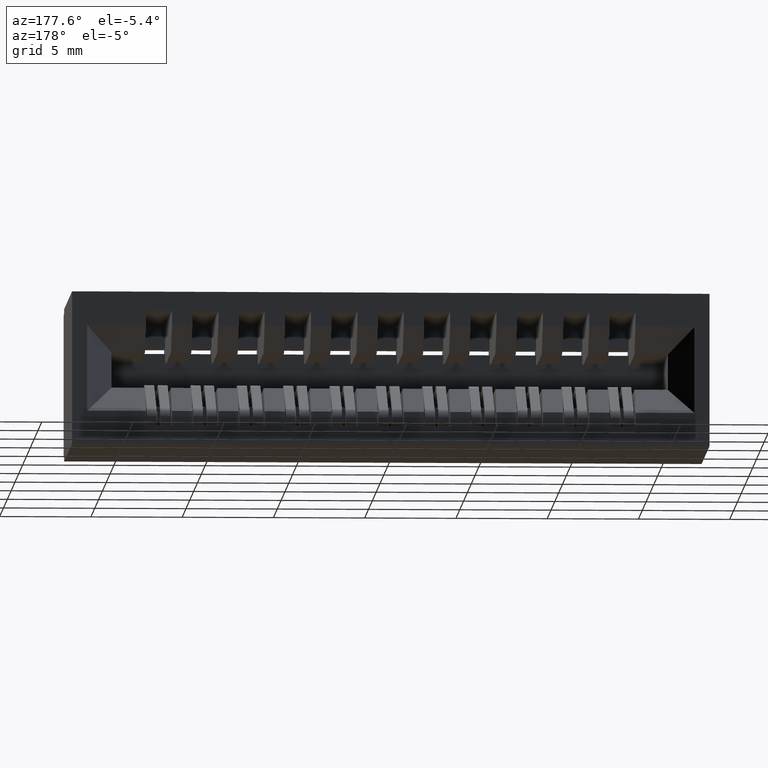
[diagram: clean part render]
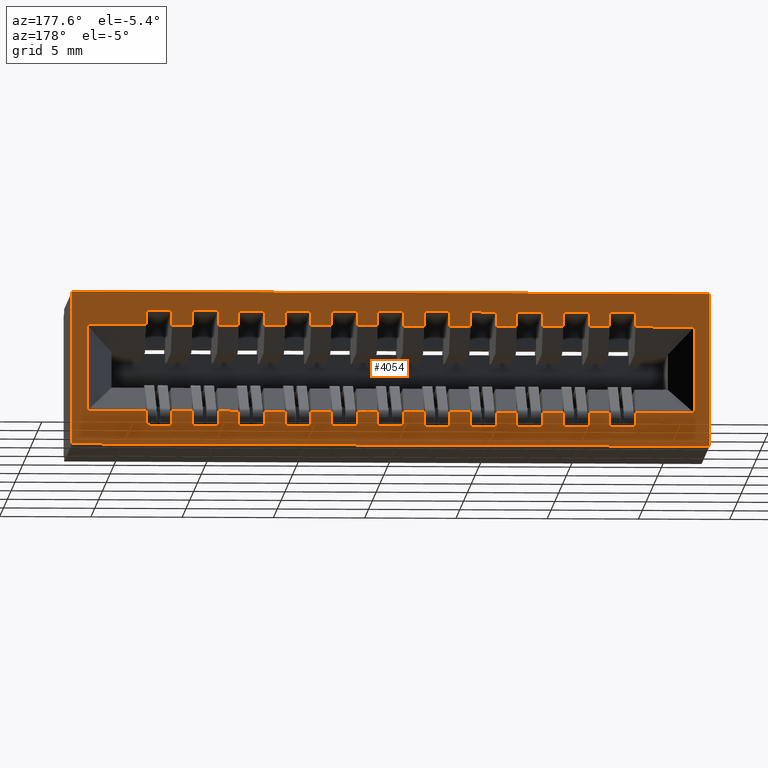
[diagram: same view with one face highlighted and labeled with its STEP entity id]
A machine part, auxiliary view. The second image highlights one B-rep face of the part: STEP entity #4054.
In plain terms, the highlighted planar face has unit normal (0, -1, 0).
Its self-contained STEP definition (entity closure, byte-faithful):
#6 = ORIENTED_EDGE ( 'NONE', *, *, #5112, .F. ) ;
#34 = EDGE_CURVE ( 'NONE', #6419, #14256, #8711, .T. ) ;
#76 = CARTESIAN_POINT ( 'NONE',  ( 0.5594999999999986700, 0.4370000000000000600, -0.2030000000000002100 ) ) ;
#79 = EDGE_CURVE ( 'NONE', #7814, #16576, #8117, .T. ) ;
#127 = ORIENTED_EDGE ( 'NONE', *, *, #5943, .T. ) ;
#149 = ORIENTED_EDGE ( 'NONE', *, *, #303, .T. ) ;
#205 = DIRECTION ( 'NONE',  ( -0.0000000000000000000, -0.0000000000000000000, 1.000000000000000000 ) ) ;
#217 = LINE ( 'NONE', #13107, #16185 ) ;
#218 = CARTESIAN_POINT ( 'NONE',  ( 1.215499999999998700, 0.4370000000000000600, -0.1269999999999999700 ) ) ;
#231 = VECTOR ( 'NONE', #6425, 39.37007874015748100 ) ;
#252 = VECTOR ( 'NONE', #7914, 39.37007874015748100 ) ;
#288 = DIRECTION ( 'NONE',  ( -0.0000000000000000000, -0.0000000000000000000, 1.000000000000000000 ) ) ;
#293 = LINE ( 'NONE', #2968, #252 ) ;
#303 = EDGE_CURVE ( 'NONE', #4162, #318, #7029, .T. ) ;
#308 = LINE ( 'NONE', #2942, #231 ) ;
#318 = VERTEX_POINT ( 'NONE', #7477 ) ;
#327 = LINE ( 'NONE', #2261, #364 ) ;
#345 = DIRECTION ( 'NONE',  ( 1.000000000000000000, -0.0000000000000000000, -0.0000000000000000000 ) ) ;
#353 = LINE ( 'NONE', #12611, #883 ) ;
#356 = LINE ( 'NONE', #8865, #3530 ) ;
#364 = VECTOR ( 'NONE', #2049, 39.37007874015748100 ) ;
#403 = ORIENTED_EDGE ( 'NONE', *, *, #6355, .T. ) ;
#404 = CARTESIAN_POINT ( 'NONE',  ( 0.0000000000000000000, 0.4370000000000000000, -0.07200000000000028600 ) ) ;
#431 = CARTESIAN_POINT ( 'NONE',  ( 0.8594999999999986000, 0.4370000000000000600, -0.04099999999999998800 ) ) ;
#434 = EDGE_CURVE ( 'NONE', #12631, #11871, #6954, .T. ) ;
#440 = DIRECTION ( 'NONE',  ( 0.0000000000000000000, 0.0000000000000000000, 1.000000000000000000 ) ) ;
#445 = DIRECTION ( 'NONE',  ( 1.000000000000000000, 0.0000000000000000000, 2.845674993400275400E-017 ) ) ;
#459 = ORIENTED_EDGE ( 'NONE', *, *, #16254, .T. ) ;
#477 = CARTESIAN_POINT ( 'NONE',  ( 0.7154999999999986900, 0.4370000000000000000, -0.07200000000000028600 ) ) ;
#493 = VERTEX_POINT ( 'NONE', #1115 ) ;
#524 = DIRECTION ( 'NONE',  ( 0.0000000000000000000, 0.0000000000000000000, 1.000000000000000000 ) ) ;
#564 = CARTESIAN_POINT ( 'NONE',  ( 0.9594999999999985800, 0.4370000000000000600, -0.04099999999999998800 ) ) ;
#567 = CARTESIAN_POINT ( 'NONE',  ( 1.015499999999998700, 0.4370000000000000600, -0.2579999999999999500 ) ) ;
#580 = VERTEX_POINT ( 'NONE', #15022 ) ;
#585 = VECTOR ( 'NONE', #3250, 39.37007874015748100 ) ;
#611 = CARTESIAN_POINT ( 'NONE',  ( 0.6594999999999986400, 0.4370000000000000600, -0.1269999999999999700 ) ) ;
#621 = VECTOR ( 'NONE', #10592, 39.37007874015748100 ) ;
#623 = CARTESIAN_POINT ( 'NONE',  ( 0.6154999999999987100, 0.4370000000000000600, -0.1269999999999999700 ) ) ;
#630 = LINE ( 'NONE', #5048, #585 ) ;
#661 = VERTEX_POINT ( 'NONE', #9442 ) ;
#663 = CARTESIAN_POINT ( 'NONE',  ( 0.7594999999999985100, 0.4370000000000000600, -0.04099999999999998800 ) ) ;
#681 = ORIENTED_EDGE ( 'NONE', *, *, #1052, .T. ) ;
#682 = CARTESIAN_POINT ( 'NONE',  ( -2.048885995248202200E-018, 0.4370000000000000000, -0.2579999999999999000 ) ) ;
#729 = VERTEX_POINT ( 'NONE', #3710 ) ;
#731 = LINE ( 'NONE', #10163, #621 ) ;
#768 = EDGE_CURVE ( 'NONE', #7814, #6118, #4990, .T. ) ;
#788 = VERTEX_POINT ( 'NONE', #6269 ) ;
#791 = VECTOR ( 'NONE', #11297, 39.37007874015748100 ) ;
#823 = ORIENTED_EDGE ( 'NONE', *, *, #6489, .T. ) ;
#838 = VECTOR ( 'NONE', #13155, 39.37007874015748100 ) ;
#871 = LINE ( 'NONE', #623, #838 ) ;
#880 = CARTESIAN_POINT ( 'NONE',  ( 1.459499999999998900, 0.4370000000000000600, -0.07200000000000021700 ) ) ;
#883 = VECTOR ( 'NONE', #12074, 39.37007874015748100 ) ;
#884 = ORIENTED_EDGE ( 'NONE', *, *, #8053, .F. ) ;
#917 = ORIENTED_EDGE ( 'NONE', *, *, #34, .T. ) ;
#940 = LINE ( 'NONE', #12424, #791 ) ;
#1001 = LINE ( 'NONE', #12814, #1071 ) ;
#1015 = VECTOR ( 'NONE', #16717, 39.37007874015748100 ) ;
#1029 = EDGE_CURVE ( 'NONE', #12631, #7507, #3443, .T. ) ;
#1033 = LINE ( 'NONE', #16535, #1015 ) ;
#1052 = EDGE_CURVE ( 'NONE', #318, #16426, #3301, .T. ) ;
#1068 = EDGE_CURVE ( 'NONE', #13597, #14256, #3170, .T. ) ;
#1071 = VECTOR ( 'NONE', #12459, 39.37007874015748100 ) ;
#1104 = ORIENTED_EDGE ( 'NONE', *, *, #15228, .F. ) ;
#1115 = CARTESIAN_POINT ( 'NONE',  ( 1.315499999999998800, 0.4370000000000000000, -0.07200000000000028600 ) ) ;
#1120 = CARTESIAN_POINT ( 'NONE',  ( 1.159499999999998600, 0.4370000000000000600, -0.04099999999999998800 ) ) ;
#1121 = EDGE_CURVE ( 'NONE', #7507, #9515, #2993, .T. ) ;
#1134 = VECTOR ( 'NONE', #12641, 39.37007874015748100 ) ;
#1165 = VECTOR ( 'NONE', #14563, 39.37007874015748100 ) ;
#1215 = CARTESIAN_POINT ( 'NONE',  ( 0.0000000000000000000, 0.4370000000000000000, -0.07200000000000028600 ) ) ;
#1218 = LINE ( 'NONE', #15084, #1165 ) ;
#1297 = VERTEX_POINT ( 'NONE', #7851 ) ;
#1314 = VERTEX_POINT ( 'NONE', #14656 ) ;
#1350 = LINE ( 'NONE', #12831, #1134 ) ;
#1358 = DIRECTION ( 'NONE',  ( -1.000000000000000000, 0.0000000000000000000, 0.0000000000000000000 ) ) ;
#1367 = ORIENTED_EDGE ( 'NONE', *, *, #5768, .T. ) ;
#1399 = EDGE_CURVE ( 'NONE', #5874, #10832, #2108, .T. ) ;
#1422 = ORIENTED_EDGE ( 'NONE', *, *, #1720, .F. ) ;
#1458 = DIRECTION ( 'NONE',  ( -1.000000000000000000, 0.0000000000000000000, 0.0000000000000000000 ) ) ;
#1499 = ORIENTED_EDGE ( 'NONE', *, *, #1954, .T. ) ;
#1507 = LINE ( 'NONE', #3725, #3238 ) ;
#1514 = ORIENTED_EDGE ( 'NONE', *, *, #12069, .T. ) ;
#1518 = CARTESIAN_POINT ( 'NONE',  ( 0.0000000000000000000, 0.4370000000000000000, -0.07200000000000028600 ) ) ;
#1539 = VECTOR ( 'NONE', #9783, 39.37007874015748100 ) ;
#1575 = CARTESIAN_POINT ( 'NONE',  ( 1.215499999999998700, 0.4370000000000000600, -0.2579999999999999500 ) ) ;
#1597 = EDGE_LOOP ( 'NONE', ( #1670, #1767, #1802, #1997, #2027, #2240, #2411, #2620, #9981, #6813, #10218, #16007, #9597, #4013, #9433, #13714, #13179, #8907, #10651, #16256, #14987, #13896, #15253, #3694, #4885, #10785, #14533, #5997, #7229, #4243, #15947, #10189, #6465, #3574, #3377, #3176, #2890, #5979, #8838, #8459, #6, #127, #403, #823, #884, #2453, #2472, #2762, #3190, #3408, #3848, #3864, #5212, #5723, #5908, #6175, #5975, #7151, #7764, #9917, #9762, #8662, #8046, #16041, #15703, #15919, #15982, #15486, #12856, #16001, #6582, #7295, #12038, #9873, #10170, #10476, #11733, #12294, #12912, #13088, #13129, #13278, #13455, #917, #13699, #13996, #14997, #459, #149, #681, #1514, #1104 ) ) ;
#1599 = LINE ( 'NONE', #9844, #1539 ) ;
#1601 = CARTESIAN_POINT ( 'NONE',  ( 0.8154999999999985600, 0.4370000000000000000, -0.07200000000000028600 ) ) ;
#1621 = ORIENTED_EDGE ( 'NONE', *, *, #1971, .F. ) ;
#1625 = LINE ( 'NONE', #3908, #1832 ) ;
#1648 = VECTOR ( 'NONE', #4616, 39.37007874015748100 ) ;
#1670 = ORIENTED_EDGE ( 'NONE', *, *, #2264, .F. ) ;
#1679 = LINE ( 'NONE', #5326, #1648 ) ;
#1720 = EDGE_CURVE ( 'NONE', #6481, #7919, #1350, .T. ) ;
#1767 = ORIENTED_EDGE ( 'NONE', *, *, #2320, .T. ) ;
#1772 = EDGE_CURVE ( 'NONE', #3873, #3223, #871, .T. ) ;
#1784 = EDGE_CURVE ( 'NONE', #580, #12310, #940, .T. ) ;
#1802 = ORIENTED_EDGE ( 'NONE', *, *, #2555, .T. ) ;
#1832 = VECTOR ( 'NONE', #3861, 39.37007874015748100 ) ;
#1837 = VERTEX_POINT ( 'NONE', #14387 ) ;
#1847 = EDGE_CURVE ( 'NONE', #9515, #7469, #630, .T. ) ;
#1922 = VECTOR ( 'NONE', #7311, 39.37007874015748100 ) ;
#1945 = CARTESIAN_POINT ( 'NONE',  ( 1.459499999999998900, 0.4370000000000000600, -0.1269999999999999700 ) ) ;
#1948 = DIRECTION ( 'NONE',  ( 1.000000000000000000, 0.0000000000000000000, 2.845674993400275400E-017 ) ) ;
#1954 = EDGE_CURVE ( 'NONE', #6481, #9038, #308, .T. ) ;
#1971 = EDGE_CURVE ( 'NONE', #7610, #9038, #293, .T. ) ;
#1982 = CARTESIAN_POINT ( 'NONE',  ( 0.8594999999999986000, 0.4370000000000000600, -0.04099999999999998800 ) ) ;
#1997 = ORIENTED_EDGE ( 'NONE', *, *, #2690, .F. ) ;
#2027 = ORIENTED_EDGE ( 'NONE', *, *, #3206, .F. ) ;
#2048 = CARTESIAN_POINT ( 'NONE',  ( 0.6594999999999986400, 0.4370000000000000600, -0.2890000000000002000 ) ) ;
#2049 = DIRECTION ( 'NONE',  ( 0.0000000000000000000, 0.0000000000000000000, 1.000000000000000000 ) ) ;
#2085 = CARTESIAN_POINT ( 'NONE',  ( 0.0000000000000000000, 0.4370000000000000000, -0.07200000000000028600 ) ) ;
#2108 = LINE ( 'NONE', #10081, #1922 ) ;
#2135 = DIRECTION ( 'NONE',  ( -1.000000000000000000, 0.0000000000000000000, 0.0000000000000000000 ) ) ;
#2193 = CARTESIAN_POINT ( 'NONE',  ( 1.115499999999998600, 0.4370000000000000600, -0.04099999999999998800 ) ) ;
#2212 = VERTEX_POINT ( 'NONE', #13165 ) ;
#2236 = VERTEX_POINT ( 'NONE', #12854 ) ;
#2240 = ORIENTED_EDGE ( 'NONE', *, *, #3261, .T. ) ;
#2261 = CARTESIAN_POINT ( 'NONE',  ( 0.8154999999999985600, 0.4370000000000000600, -0.1269999999999999700 ) ) ;
#2264 = EDGE_CURVE ( 'NONE', #3863, #13552, #16264, .T. ) ;
#2288 = VERTEX_POINT ( 'NONE', #4102 ) ;
#2320 = EDGE_CURVE ( 'NONE', #3863, #3803, #16183, .T. ) ;
#2361 = CARTESIAN_POINT ( 'NONE',  ( 0.0000000000000000000, 0.4370000000000000000, -0.07200000000000028600 ) ) ;
#2366 = EDGE_CURVE ( 'NONE', #9735, #6554, #16170, .T. ) ;
#2400 = VECTOR ( 'NONE', #9519, 39.37007874015748100 ) ;
#2411 = ORIENTED_EDGE ( 'NONE', *, *, #3787, .T. ) ;
#2453 = ORIENTED_EDGE ( 'NONE', *, *, #8900, .T. ) ;
#2472 = ORIENTED_EDGE ( 'NONE', *, *, #8096, .T. ) ;
#2527 = LINE ( 'NONE', #1982, #2400 ) ;
#2552 = EDGE_CURVE ( 'NONE', #13597, #6384, #15872, .T. ) ;
#2555 = EDGE_CURVE ( 'NONE', #3803, #729, #15883, .T. ) ;
#2620 = ORIENTED_EDGE ( 'NONE', *, *, #3821, .F. ) ;
#2630 = DIRECTION ( 'NONE',  ( -0.0000000000000000000, -0.0000000000000000000, 1.000000000000000000 ) ) ;
#2642 = CARTESIAN_POINT ( 'NONE',  ( 1.115499999999998600, 0.4370000000000000600, -0.2579999999999999500 ) ) ;
#2666 = VERTEX_POINT ( 'NONE', #10410 ) ;
#2690 = EDGE_CURVE ( 'NONE', #4260, #729, #15620, .T. ) ;
#2762 = ORIENTED_EDGE ( 'NONE', *, *, #9589, .T. ) ;
#2789 = VECTOR ( 'NONE', #7789, 39.37007874015748100 ) ;
#2826 = EDGE_CURVE ( 'NONE', #4487, #7469, #15394, .T. ) ;
#2847 = DIRECTION ( 'NONE',  ( 0.0000000000000000000, 0.0000000000000000000, 1.000000000000000000 ) ) ;
#2861 = LINE ( 'NONE', #76, #2789 ) ;
#2877 = LINE ( 'NONE', #4025, #3009 ) ;
#2890 = ORIENTED_EDGE ( 'NONE', *, *, #768, .F. ) ;
#2896 = VECTOR ( 'NONE', #12230, 39.37007874015748100 ) ;
#2925 = VECTOR ( 'NONE', #7195, 39.37007874015748100 ) ;
#2942 = CARTESIAN_POINT ( 'NONE',  ( 0.0000000000000000000, 0.4370000000000000000, -0.3300000000000000200 ) ) ;
#2968 = CARTESIAN_POINT ( 'NONE',  ( 0.2999999999999999300, 0.4370000000000000000, -0.3300000000000000200 ) ) ;
#2973 = VERTEX_POINT ( 'NONE', #9999 ) ;
#2982 = LINE ( 'NONE', #1215, #2896 ) ;
#2993 = LINE ( 'NONE', #7343, #2925 ) ;
#3009 = VECTOR ( 'NONE', #15093, 39.37007874015748100 ) ;
#3074 = VECTOR ( 'NONE', #4463, 39.37007874015748100 ) ;
#3106 = VERTEX_POINT ( 'NONE', #13990 ) ;
#3146 = DIRECTION ( 'NONE',  ( 1.000000000000000000, -0.0000000000000000000, -0.0000000000000000000 ) ) ;
#3153 = EDGE_CURVE ( 'NONE', #4487, #6446, #14927, .T. ) ;
#3170 = LINE ( 'NONE', #10649, #3074 ) ;
#3173 = DIRECTION ( 'NONE',  ( 0.0000000000000000000, 0.0000000000000000000, 1.000000000000000000 ) ) ;
#3176 = ORIENTED_EDGE ( 'NONE', *, *, #4981, .F. ) ;
#3190 = ORIENTED_EDGE ( 'NONE', *, *, #10616, .F. ) ;
#3197 = LINE ( 'NONE', #7113, #3459 ) ;
#3206 = EDGE_CURVE ( 'NONE', #12986, #4260, #14837, .T. ) ;
#3223 = VERTEX_POINT ( 'NONE', #9143 ) ;
#3238 = VECTOR ( 'NONE', #3703, 39.37007874015748100 ) ;
#3250 = DIRECTION ( 'NONE',  ( 1.000000000000000000, 0.0000000000000000000, 2.845674993400275400E-017 ) ) ;
#3253 = VECTOR ( 'NONE', #11596, 39.37007874015748100 ) ;
#3261 = EDGE_CURVE ( 'NONE', #12986, #493, #14643, .T. ) ;
#3301 = LINE ( 'NONE', #6678, #3253 ) ;
#3351 = CARTESIAN_POINT ( 'NONE',  ( 0.0000000000000000000, 0.4370000000000000000, -0.3300000000000000200 ) ) ;
#3368 = PLANE ( 'NONE',  #15884 ) ;
#3377 = ORIENTED_EDGE ( 'NONE', *, *, #1772, .T. ) ;
#3394 = VECTOR ( 'NONE', #5964, 39.37007874015748100 ) ;
#3408 = ORIENTED_EDGE ( 'NONE', *, *, #11107, .T. ) ;
#3443 = LINE ( 'NONE', #9797, #3394 ) ;
#3459 = VECTOR ( 'NONE', #15803, 39.37007874015748100 ) ;
#3530 = VECTOR ( 'NONE', #8821, 39.37007874015748100 ) ;
#3574 = ORIENTED_EDGE ( 'NONE', *, *, #13882, .T. ) ;
#3575 = VERTEX_POINT ( 'NONE', #6604 ) ;
#3602 = EDGE_CURVE ( 'NONE', #6446, #10973, #13868, .T. ) ;
#3604 = VERTEX_POINT ( 'NONE', #4237 ) ;
#3607 = VERTEX_POINT ( 'NONE', #8531 ) ;
#3691 = CARTESIAN_POINT ( 'NONE',  ( 0.8154999999999985600, 0.4370000000000000600, -0.2890000000000002000 ) ) ;
#3694 = ORIENTED_EDGE ( 'NONE', *, *, #7143, .F. ) ;
#3703 = DIRECTION ( 'NONE',  ( -0.0000000000000000000, -0.0000000000000000000, 1.000000000000000000 ) ) ;
#3710 = CARTESIAN_POINT ( 'NONE',  ( 1.415499999999998900, 0.4370000000000000600, -0.04099999999999998800 ) ) ;
#3716 = VERTEX_POINT ( 'NONE', #564 ) ;
#3725 = CARTESIAN_POINT ( 'NONE',  ( 0.7154999999999986900, 0.4370000000000000600, -0.2030000000000002100 ) ) ;
#3739 = CARTESIAN_POINT ( 'NONE',  ( 0.9594999999999985800, 0.4370000000000000600, -0.07200000000000021700 ) ) ;
#3765 = CARTESIAN_POINT ( 'NONE',  ( 0.8154999999999985600, 0.4370000000000000600, -0.2579999999999999500 ) ) ;
#3787 = EDGE_CURVE ( 'NONE', #493, #11005, #13562, .T. ) ;
#3800 = DIRECTION ( 'NONE',  ( 0.0000000000000000000, 0.0000000000000000000, 1.000000000000000000 ) ) ;
#3803 = VERTEX_POINT ( 'NONE', #7560 ) ;
#3821 = EDGE_CURVE ( 'NONE', #9093, #11005, #13405, .T. ) ;
#3843 = LINE ( 'NONE', #5388, #3886 ) ;
#3848 = ORIENTED_EDGE ( 'NONE', *, *, #12533, .T. ) ;
#3849 = EDGE_CURVE ( 'NONE', #10973, #2288, #13291, .T. ) ;
#3861 = DIRECTION ( 'NONE',  ( 1.000000000000000000, 0.0000000000000000000, 2.845674993400275400E-017 ) ) ;
#3863 = VERTEX_POINT ( 'NONE', #880 ) ;
#3864 = ORIENTED_EDGE ( 'NONE', *, *, #12820, .T. ) ;
#3873 = VERTEX_POINT ( 'NONE', #5020 ) ;
#3886 = VECTOR ( 'NONE', #5604, 39.37007874015748100 ) ;
#3908 = CARTESIAN_POINT ( 'NONE',  ( -2.048885995248202200E-018, 0.4370000000000000000, -0.2579999999999999000 ) ) ;
#3923 = VERTEX_POINT ( 'NONE', #1120 ) ;
#3937 = VERTEX_POINT ( 'NONE', #1601 ) ;
#3977 = CARTESIAN_POINT ( 'NONE',  ( 0.2999999999999999900, 0.4370000000000000000, 0.0000000000000000000 ) ) ;
#3993 = DIRECTION ( 'NONE',  ( -0.0000000000000000000, -0.0000000000000000000, 1.000000000000000000 ) ) ;
#4013 = ORIENTED_EDGE ( 'NONE', *, *, #4988, .T. ) ;
#4025 = CARTESIAN_POINT ( 'NONE',  ( 0.9154999999999986500, 0.4370000000000000600, -0.1269999999999999700 ) ) ;
#4049 = VERTEX_POINT ( 'NONE', #2048 ) ;
#4054 = ADVANCED_FACE ( 'NONE', ( #12905, #12975 ), #3368, .F. ) ;
#4055 = EDGE_CURVE ( 'NONE', #9032, #9093, #12768, .T. ) ;
#4079 = EDGE_CURVE ( 'NONE', #14266, #11143, #12742, .T. ) ;
#4080 = CARTESIAN_POINT ( 'NONE',  ( 0.5594999999999986700, 0.4370000000000000600, -0.2579999999999999500 ) ) ;
#4086 = EDGE_CURVE ( 'NONE', #9032, #2973, #12714, .T. ) ;
#4102 = CARTESIAN_POINT ( 'NONE',  ( 1.159499999999998600, 0.4370000000000000600, -0.2579999999999999500 ) ) ;
#4136 = EDGE_CURVE ( 'NONE', #2973, #6825, #12506, .T. ) ;
#4162 = VERTEX_POINT ( 'NONE', #9805 ) ;
#4202 = DIRECTION ( 'NONE',  ( -0.0000000000000000000, -0.0000000000000000000, 1.000000000000000000 ) ) ;
#4237 = CARTESIAN_POINT ( 'NONE',  ( 0.4594999999999986900, 0.4370000000000000600, -0.07200000000000021700 ) ) ;
#4243 = ORIENTED_EDGE ( 'NONE', *, *, #9436, .T. ) ;
#4255 = DIRECTION ( 'NONE',  ( 0.0000000000000000000, -1.000000000000000000, 0.0000000000000000000 ) ) ;
#4260 = VERTEX_POINT ( 'NONE', #14199 ) ;
#4261 = VECTOR ( 'NONE', #12072, 39.37007874015748100 ) ;
#4354 = EDGE_CURVE ( 'NONE', #6681, #1297, #11962, .T. ) ;
#4363 = LINE ( 'NONE', #14411, #4261 ) ;
#4382 = CARTESIAN_POINT ( 'NONE',  ( 0.6154999999999987100, 0.4370000000000000600, -0.2890000000000002000 ) ) ;
#4413 = VECTOR ( 'NONE', #8247, 39.37007874015748100 ) ;
#4419 = CARTESIAN_POINT ( 'NONE',  ( 1.259499999999999000, 0.4370000000000000600, -0.2030000000000002100 ) ) ;
#4455 = DIRECTION ( 'NONE',  ( 0.0000000000000000000, -0.0000000000000000000, -1.000000000000000000 ) ) ;
#4457 = EDGE_CURVE ( 'NONE', #3923, #6825, #11680, .T. ) ;
#4463 = DIRECTION ( 'NONE',  ( -0.0000000000000000000, -0.0000000000000000000, 1.000000000000000000 ) ) ;
#4487 = VERTEX_POINT ( 'NONE', #6621 ) ;
#4528 = LINE ( 'NONE', #7228, #4413 ) ;
#4545 = CARTESIAN_POINT ( 'NONE',  ( 0.4594999999999986900, 0.4370000000000000600, -0.2579999999999999500 ) ) ;
#4571 = EDGE_CURVE ( 'NONE', #7555, #2288, #11473, .T. ) ;
#4616 = DIRECTION ( 'NONE',  ( 1.000000000000000000, 0.0000000000000000000, 2.845674993400275400E-017 ) ) ;
#4652 = VERTEX_POINT ( 'NONE', #9839 ) ;
#4721 = VECTOR ( 'NONE', #11127, 39.37007874015748100 ) ;
#4762 = LINE ( 'NONE', #16345, #4721 ) ;
#4841 = VERTEX_POINT ( 'NONE', #4382 ) ;
#4849 = VECTOR ( 'NONE', #14621, 39.37007874015748100 ) ;
#4885 = ORIENTED_EDGE ( 'NONE', *, *, #7538, .F. ) ;
#4909 = CARTESIAN_POINT ( 'NONE',  ( 1.259499999999999000, 0.4370000000000000600, -0.1269999999999999700 ) ) ;
#4910 = LINE ( 'NONE', #16651, #4849 ) ;
#4950 = EDGE_CURVE ( 'NONE', #788, #3923, #10194, .T. ) ;
#4970 = DIRECTION ( 'NONE',  ( -1.000000000000000000, 0.0000000000000000000, 0.0000000000000000000 ) ) ;
#4981 = EDGE_CURVE ( 'NONE', #6118, #3223, #10147, .T. ) ;
#4988 = EDGE_CURVE ( 'NONE', #788, #2236, #10023, .T. ) ;
#4990 = LINE ( 'NONE', #13316, #5009 ) ;
#5009 = VECTOR ( 'NONE', #10459, 39.37007874015748100 ) ;
#5014 = CARTESIAN_POINT ( 'NONE',  ( 1.215499999999998700, 0.4370000000000000600, -0.2030000000000002100 ) ) ;
#5020 = CARTESIAN_POINT ( 'NONE',  ( 0.6154999999999987100, 0.4370000000000000000, -0.07200000000000028600 ) ) ;
#5048 = CARTESIAN_POINT ( 'NONE',  ( -2.048885995248202200E-018, 0.4370000000000000000, -0.2579999999999999000 ) ) ;
#5112 = EDGE_CURVE ( 'NONE', #3604, #14266, #9740, .T. ) ;
#5159 = VECTOR ( 'NONE', #13453, 39.37007874015748100 ) ;
#5174 = VECTOR ( 'NONE', #11314, 39.37007874015748100 ) ;
#5186 = DIRECTION ( 'NONE',  ( 1.000000000000000000, 0.0000000000000000000, 2.845674993400275400E-017 ) ) ;
#5212 = ORIENTED_EDGE ( 'NONE', *, *, #13219, .F. ) ;
#5213 = CARTESIAN_POINT ( 'NONE',  ( -2.048885995248202200E-018, 0.4370000000000000000, -0.2579999999999999000 ) ) ;
#5226 = LINE ( 'NONE', #15197, #5159 ) ;
#5227 = EDGE_CURVE ( 'NONE', #2236, #10540, #9025, .T. ) ;
#5263 = CARTESIAN_POINT ( 'NONE',  ( 0.6594999999999986400, 0.4370000000000000600, -0.07200000000000021700 ) ) ;
#5294 = CARTESIAN_POINT ( 'NONE',  ( 0.8594999999999986000, 0.4370000000000000600, -0.2890000000000002000 ) ) ;
#5326 = CARTESIAN_POINT ( 'NONE',  ( -2.048885995248202200E-018, 0.4370000000000000000, -0.2579999999999999000 ) ) ;
#5370 = LINE ( 'NONE', #11780, #5174 ) ;
#5371 = EDGE_CURVE ( 'NONE', #4652, #10540, #8583, .T. ) ;
#5388 = CARTESIAN_POINT ( 'NONE',  ( 0.6594999999999986400, 0.4370000000000000600, -0.04099999999999998800 ) ) ;
#5413 = VERTEX_POINT ( 'NONE', #10911 ) ;
#5446 = EDGE_CURVE ( 'NONE', #10832, #6419, #8446, .T. ) ;
#5547 = LINE ( 'NONE', #16236, #5552 ) ;
#5552 = VECTOR ( 'NONE', #1458, 39.37007874015748100 ) ;
#5596 = CARTESIAN_POINT ( 'NONE',  ( 0.7154999999999986900, 0.4370000000000000600, -0.2890000000000002000 ) ) ;
#5604 = DIRECTION ( 'NONE',  ( 1.000000000000000000, -0.0000000000000000000, -0.0000000000000000000 ) ) ;
#5723 = ORIENTED_EDGE ( 'NONE', *, *, #13449, .T. ) ;
#5768 = EDGE_CURVE ( 'NONE', #7610, #7919, #7249, .T. ) ;
#5773 = LINE ( 'NONE', #15985, #7235 ) ;
#5778 = EDGE_CURVE ( 'NONE', #7555, #3607, #7408, .T. ) ;
#5841 = VERTEX_POINT ( 'NONE', #3691 ) ;
#5874 = VERTEX_POINT ( 'NONE', #6439 ) ;
#5908 = ORIENTED_EDGE ( 'NONE', *, *, #13801, .T. ) ;
#5943 = EDGE_CURVE ( 'NONE', #3604, #1837, #6727, .T. ) ;
#5944 = CARTESIAN_POINT ( 'NONE',  ( 0.5154999999999987400, 0.4370000000000000600, -0.2890000000000002000 ) ) ;
#5955 = CARTESIAN_POINT ( 'NONE',  ( 0.4594999999999986900, 0.4370000000000000600, -0.04099999999999998800 ) ) ;
#5964 = DIRECTION ( 'NONE',  ( 1.000000000000000000, -0.0000000000000000000, -0.0000000000000000000 ) ) ;
#5968 = EDGE_CURVE ( 'NONE', #12687, #4652, #6675, .T. ) ;
#5975 = ORIENTED_EDGE ( 'NONE', *, *, #14408, .F. ) ;
#5979 = ORIENTED_EDGE ( 'NONE', *, *, #79, .T. ) ;
#5997 = ORIENTED_EDGE ( 'NONE', *, *, #8163, .F. ) ;
#6025 = DIRECTION ( 'NONE',  ( 1.000000000000000000, -0.0000000000000000000, -0.0000000000000000000 ) ) ;
#6050 = EDGE_CURVE ( 'NONE', #3607, #12446, #6475, .T. ) ;
#6090 = CARTESIAN_POINT ( 'NONE',  ( 1.675000000000000000, 0.4370000000000000000, -1.836970198721029400E-017 ) ) ;
#6118 = VERTEX_POINT ( 'NONE', #7612 ) ;
#6138 = DIRECTION ( 'NONE',  ( 0.0000000000000000000, 0.0000000000000000000, 1.000000000000000000 ) ) ;
#6164 = DIRECTION ( 'NONE',  ( 1.000000000000000000, -0.0000000000000000000, -0.0000000000000000000 ) ) ;
#6165 = EDGE_CURVE ( 'NONE', #12687, #2666, #5547, .T. ) ;
#6175 = ORIENTED_EDGE ( 'NONE', *, *, #14064, .T. ) ;
#6241 = VECTOR ( 'NONE', #10690, 39.37007874015748100 ) ;
#6269 = CARTESIAN_POINT ( 'NONE',  ( 1.159499999999998600, 0.4370000000000000600, -0.07200000000000021700 ) ) ;
#6344 = DIRECTION ( 'NONE',  ( 1.000000000000000000, -0.0000000000000000000, -0.0000000000000000000 ) ) ;
#6355 = EDGE_CURVE ( 'NONE', #1837, #15709, #4910, .T. ) ;
#6372 = VERTEX_POINT ( 'NONE', #15453 ) ;
#6384 = VERTEX_POINT ( 'NONE', #13245 ) ;
#6388 = EDGE_CURVE ( 'NONE', #2666, #6372, #4762, .T. ) ;
#6401 = VECTOR ( 'NONE', #205, 39.37007874015748100 ) ;
#6419 = VERTEX_POINT ( 'NONE', #15222 ) ;
#6425 = DIRECTION ( 'NONE',  ( -1.000000000000000000, -0.0000000000000000000, -0.0000000000000000000 ) ) ;
#6435 = EDGE_CURVE ( 'NONE', #3716, #6372, #4528, .T. ) ;
#6439 = CARTESIAN_POINT ( 'NONE',  ( 1.359499999999999000, 0.4370000000000000600, -0.2890000000000002000 ) ) ;
#6446 = VERTEX_POINT ( 'NONE', #9586 ) ;
#6465 = ORIENTED_EDGE ( 'NONE', *, *, #2366, .F. ) ;
#6475 = LINE ( 'NONE', #5014, #6401 ) ;
#6481 = VERTEX_POINT ( 'NONE', #11829 ) ;
#6489 = EDGE_CURVE ( 'NONE', #15709, #9752, #4363, .T. ) ;
#6497 = LINE ( 'NONE', #7590, #6241 ) ;
#6520 = CARTESIAN_POINT ( 'NONE',  ( 1.415499999999998900, 0.4370000000000000600, -0.2030000000000002100 ) ) ;
#6537 = CARTESIAN_POINT ( 'NONE',  ( 0.4594999999999986900, 0.4370000000000000600, -0.2890000000000002000 ) ) ;
#6554 = VERTEX_POINT ( 'NONE', #7782 ) ;
#6557 = CARTESIAN_POINT ( 'NONE',  ( 1.215499999999998700, 0.4370000000000000600, -0.04099999999999998800 ) ) ;
#6582 = ORIENTED_EDGE ( 'NONE', *, *, #3602, .T. ) ;
#6604 = CARTESIAN_POINT ( 'NONE',  ( 1.259499999999999000, 0.4370000000000000600, -0.2890000000000002000 ) ) ;
#6621 = CARTESIAN_POINT ( 'NONE',  ( 1.059499999999998600, 0.4370000000000000600, -0.2890000000000002000 ) ) ;
#6660 = VECTOR ( 'NONE', #2630, 39.37007874015748100 ) ;
#6665 = VERTEX_POINT ( 'NONE', #9198 ) ;
#6675 = LINE ( 'NONE', #10604, #6687 ) ;
#6678 = CARTESIAN_POINT ( 'NONE',  ( 0.0000000000000000000, 0.4370000000000000000, -0.07200000000000028600 ) ) ;
#6681 = VERTEX_POINT ( 'NONE', #5294 ) ;
#6687 = VECTOR ( 'NONE', #11088, 39.37007874015748100 ) ;
#6727 = LINE ( 'NONE', #9178, #6854 ) ;
#6749 = CARTESIAN_POINT ( 'NONE',  ( 1.459499999999998900, 0.4370000000000000600, -0.2890000000000002000 ) ) ;
#6813 = ORIENTED_EDGE ( 'NONE', *, *, #4086, .T. ) ;
#6823 = EDGE_CURVE ( 'NONE', #14733, #3716, #3197, .T. ) ;
#6825 = VERTEX_POINT ( 'NONE', #6557 ) ;
#6832 = DIRECTION ( 'NONE',  ( -0.0000000000000000000, -0.0000000000000000000, 1.000000000000000000 ) ) ;
#6854 = VECTOR ( 'NONE', #9101, 39.37007874015748100 ) ;
#6872 = CARTESIAN_POINT ( 'NONE',  ( 1.642499999999998100, 0.4370000000000000000, -0.3300000000000000200 ) ) ;
#6936 = EDGE_CURVE ( 'NONE', #14733, #6955, #2982, .T. ) ;
#6954 = LINE ( 'NONE', #15371, #6660 ) ;
#6955 = VERTEX_POINT ( 'NONE', #10183 ) ;
#6965 = EDGE_CURVE ( 'NONE', #6955, #3106, #2877, .T. ) ;
#7029 = LINE ( 'NONE', #6872, #7049 ) ;
#7038 = DIRECTION ( 'NONE',  ( 1.000000000000000000, 0.0000000000000000000, 2.845674993400275400E-017 ) ) ;
#7049 = VECTOR ( 'NONE', #16737, 39.37007874015748100 ) ;
#7100 = VERTEX_POINT ( 'NONE', #13520 ) ;
#7103 = DIRECTION ( 'NONE',  ( 1.000000000000000000, 0.0000000000000000000, 2.845674993400275400E-017 ) ) ;
#7113 = CARTESIAN_POINT ( 'NONE',  ( 0.9594999999999985800, 0.4370000000000000600, -0.1269999999999999700 ) ) ;
#7119 = CARTESIAN_POINT ( 'NONE',  ( 0.3324999999999988500, 0.4370000000000000000, -0.2579999999999999000 ) ) ;
#7143 = EDGE_CURVE ( 'NONE', #11503, #3106, #2527, .T. ) ;
#7151 = ORIENTED_EDGE ( 'NONE', *, *, #14547, .T. ) ;
#7185 = VECTOR ( 'NONE', #345, 39.37007874015748100 ) ;
#7195 = DIRECTION ( 'NONE',  ( -0.0000000000000000000, -0.0000000000000000000, 1.000000000000000000 ) ) ;
#7228 = CARTESIAN_POINT ( 'NONE',  ( 0.9594999999999985800, 0.4370000000000000600, -0.04099999999999998800 ) ) ;
#7229 = ORIENTED_EDGE ( 'NONE', *, *, #9248, .F. ) ;
#7235 = VECTOR ( 'NONE', #15975, 39.37007874015748100 ) ;
#7249 = LINE ( 'NONE', #14009, #7287 ) ;
#7260 = CARTESIAN_POINT ( 'NONE',  ( -2.048885995248202200E-018, 0.4370000000000000000, -0.2579999999999999000 ) ) ;
#7283 = CARTESIAN_POINT ( 'NONE',  ( 1.315499999999998800, 0.4370000000000000600, -0.2579999999999999500 ) ) ;
#7287 = VECTOR ( 'NONE', #11034, 39.37007874015748100 ) ;
#7295 = ORIENTED_EDGE ( 'NONE', *, *, #3849, .T. ) ;
#7308 = CARTESIAN_POINT ( 'NONE',  ( 0.8154999999999985600, 0.4370000000000000600, -0.2030000000000002100 ) ) ;
#7311 = DIRECTION ( 'NONE',  ( 1.000000000000000000, -0.0000000000000000000, -0.0000000000000000000 ) ) ;
#7333 = CARTESIAN_POINT ( 'NONE',  ( -2.048885995248202200E-018, 0.4370000000000000000, -0.2579999999999999000 ) ) ;
#7343 = CARTESIAN_POINT ( 'NONE',  ( 1.015499999999998700, 0.4370000000000000600, -0.2030000000000002100 ) ) ;
#7358 = VERTEX_POINT ( 'NONE', #16816 ) ;
#7408 = LINE ( 'NONE', #16071, #7185 ) ;
#7413 = VERTEX_POINT ( 'NONE', #5944 ) ;
#7469 = VERTEX_POINT ( 'NONE', #13860 ) ;
#7477 = CARTESIAN_POINT ( 'NONE',  ( 1.642499999999998100, 0.4370000000000000000, -0.07200000000000028600 ) ) ;
#7507 = VERTEX_POINT ( 'NONE', #11698 ) ;
#7538 = EDGE_CURVE ( 'NONE', #14251, #11503, #1599, .T. ) ;
#7555 = VERTEX_POINT ( 'NONE', #10118 ) ;
#7560 = CARTESIAN_POINT ( 'NONE',  ( 1.415499999999998900, 0.4370000000000000000, -0.07200000000000028600 ) ) ;
#7590 = CARTESIAN_POINT ( 'NONE',  ( 1.515499999999999000, 0.4370000000000000600, -0.1269999999999999700 ) ) ;
#7610 = VERTEX_POINT ( 'NONE', #3977 ) ;
#7612 = CARTESIAN_POINT ( 'NONE',  ( 0.5594999999999986700, 0.4370000000000000600, -0.04099999999999998800 ) ) ;
#7642 = EDGE_CURVE ( 'NONE', #1297, #7100, #1033, .T. ) ;
#7694 = DIRECTION ( 'NONE',  ( -0.0000000000000000000, -0.0000000000000000000, 1.000000000000000000 ) ) ;
#7764 = ORIENTED_EDGE ( 'NONE', *, *, #15133, .T. ) ;
#7782 = CARTESIAN_POINT ( 'NONE',  ( 0.6594999999999986400, 0.4370000000000000600, -0.04099999999999998800 ) ) ;
#7787 = EDGE_CURVE ( 'NONE', #14251, #3937, #731, .T. ) ;
#7789 = DIRECTION ( 'NONE',  ( -0.0000000000000000000, -0.0000000000000000000, 1.000000000000000000 ) ) ;
#7792 = LINE ( 'NONE', #10822, #13656 ) ;
#7796 = DIRECTION ( 'NONE',  ( 1.000000000000000000, -0.0000000000000000000, -0.0000000000000000000 ) ) ;
#7814 = VERTEX_POINT ( 'NONE', #8582 ) ;
#7851 = CARTESIAN_POINT ( 'NONE',  ( 0.9154999999999986500, 0.4370000000000000600, -0.2890000000000002000 ) ) ;
#7868 = CARTESIAN_POINT ( 'NONE',  ( -2.048885995248202200E-018, 0.4370000000000000000, -0.2579999999999999000 ) ) ;
#7914 = DIRECTION ( 'NONE',  ( -1.034790906691008700E-016, -0.0000000000000000000, -1.000000000000000000 ) ) ;
#7919 = VERTEX_POINT ( 'NONE', #6090 ) ;
#7950 = EDGE_CURVE ( 'NONE', #3937, #15582, #327, .T. ) ;
#8046 = ORIENTED_EDGE ( 'NONE', *, *, #7642, .T. ) ;
#8050 = CARTESIAN_POINT ( 'NONE',  ( 0.4594999999999986900, 0.4370000000000000600, -0.1269999999999999700 ) ) ;
#8053 = EDGE_CURVE ( 'NONE', #7358, #9752, #11697, .T. ) ;
#8091 = CARTESIAN_POINT ( 'NONE',  ( 1.459499999999998900, 0.4370000000000000600, -0.04099999999999998800 ) ) ;
#8096 = EDGE_CURVE ( 'NONE', #7413, #661, #9410, .T. ) ;
#8100 = VECTOR ( 'NONE', #14301, 39.37007874015748100 ) ;
#8117 = LINE ( 'NONE', #15981, #8100 ) ;
#8163 = EDGE_CURVE ( 'NONE', #8742, #15582, #11472, .T. ) ;
#8247 = DIRECTION ( 'NONE',  ( 1.000000000000000000, -0.0000000000000000000, -0.0000000000000000000 ) ) ;
#8305 = DIRECTION ( 'NONE',  ( 0.0000000000000000000, 0.0000000000000000000, 1.000000000000000000 ) ) ;
#8335 = VECTOR ( 'NONE', #288, 39.37007874015748100 ) ;
#8430 = DIRECTION ( 'NONE',  ( -1.000000000000000000, 0.0000000000000000000, 0.0000000000000000000 ) ) ;
#8446 = LINE ( 'NONE', #6520, #8335 ) ;
#8455 = VECTOR ( 'NONE', #16661, 39.37007874015748100 ) ;
#8459 = ORIENTED_EDGE ( 'NONE', *, *, #4079, .F. ) ;
#8510 = CARTESIAN_POINT ( 'NONE',  ( 0.7594999999999985100, 0.4370000000000000600, -0.2890000000000002000 ) ) ;
#8521 = VECTOR ( 'NONE', #11263, 39.37007874015748100 ) ;
#8531 = CARTESIAN_POINT ( 'NONE',  ( 1.215499999999998700, 0.4370000000000000600, -0.2890000000000002000 ) ) ;
#8534 = DIRECTION ( 'NONE',  ( 1.000000000000000000, -0.0000000000000000000, -0.0000000000000000000 ) ) ;
#8537 = CARTESIAN_POINT ( 'NONE',  ( 1.515499999999999000, 0.4370000000000000600, -0.2579999999999999500 ) ) ;
#8582 = CARTESIAN_POINT ( 'NONE',  ( 0.5594999999999986700, 0.4370000000000000600, -0.07200000000000021700 ) ) ;
#8583 = LINE ( 'NONE', #15258, #8521 ) ;
#8585 = CARTESIAN_POINT ( 'NONE',  ( -2.048885995248202200E-018, 0.4370000000000000000, -0.2579999999999999000 ) ) ;
#8592 = CARTESIAN_POINT ( 'NONE',  ( 0.9594999999999985800, 0.4370000000000000600, -0.2579999999999999500 ) ) ;
#8626 = CARTESIAN_POINT ( 'NONE',  ( 0.8594999999999986000, 0.4370000000000000600, -0.2890000000000002000 ) ) ;
#8662 = ORIENTED_EDGE ( 'NONE', *, *, #4354, .T. ) ;
#8671 = LINE ( 'NONE', #682, #8876 ) ;
#8711 = LINE ( 'NONE', #7868, #8455 ) ;
#8742 = VERTEX_POINT ( 'NONE', #663 ) ;
#8750 = EDGE_CURVE ( 'NONE', #12446, #1314, #8671, .T. ) ;
#8757 = DIRECTION ( 'NONE',  ( 1.000000000000000000, -0.0000000000000000000, -0.0000000000000000000 ) ) ;
#8799 = CARTESIAN_POINT ( 'NONE',  ( 1.059499999999998600, 0.4370000000000000600, -0.07200000000000021700 ) ) ;
#8821 = DIRECTION ( 'NONE',  ( 1.000000000000000000, -0.0000000000000000000, -0.0000000000000000000 ) ) ;
#8838 = ORIENTED_EDGE ( 'NONE', *, *, #12961, .T. ) ;
#8851 = CARTESIAN_POINT ( 'NONE',  ( 0.6154999999999987100, 0.4370000000000000600, -0.2579999999999999500 ) ) ;
#8865 = CARTESIAN_POINT ( 'NONE',  ( 0.6594999999999986400, 0.4370000000000000600, -0.2890000000000002000 ) ) ;
#8876 = VECTOR ( 'NONE', #445, 39.37007874015748100 ) ;
#8882 = DIRECTION ( 'NONE',  ( -0.0000000000000000000, -0.0000000000000000000, 1.000000000000000000 ) ) ;
#8900 = EDGE_CURVE ( 'NONE', #7358, #7413, #12108, .T. ) ;
#8907 = ORIENTED_EDGE ( 'NONE', *, *, #6165, .T. ) ;
#8914 = CARTESIAN_POINT ( 'NONE',  ( 1.415499999999998900, 0.4370000000000000600, -0.2890000000000002000 ) ) ;
#8969 = VECTOR ( 'NONE', #11899, 39.37007874015748100 ) ;
#9025 = LINE ( 'NONE', #15840, #8969 ) ;
#9032 = VERTEX_POINT ( 'NONE', #15935 ) ;
#9038 = VERTEX_POINT ( 'NONE', #15904 ) ;
#9070 = CARTESIAN_POINT ( 'NONE',  ( 0.5594999999999986700, 0.4370000000000000600, -0.04099999999999998800 ) ) ;
#9087 = CARTESIAN_POINT ( 'NONE',  ( 0.6594999999999986400, 0.4370000000000000600, -0.2579999999999999500 ) ) ;
#9093 = VERTEX_POINT ( 'NONE', #14651 ) ;
#9101 = DIRECTION ( 'NONE',  ( -1.000000000000000000, 0.0000000000000000000, 0.0000000000000000000 ) ) ;
#9119 = DIRECTION ( 'NONE',  ( 0.0000000000000000000, 0.0000000000000000000, 1.000000000000000000 ) ) ;
#9136 = CARTESIAN_POINT ( 'NONE',  ( 0.8594999999999986000, 0.4370000000000000600, -0.2030000000000002100 ) ) ;
#9143 = CARTESIAN_POINT ( 'NONE',  ( 0.6154999999999987100, 0.4370000000000000600, -0.04099999999999998800 ) ) ;
#9151 = VECTOR ( 'NONE', #1358, 39.37007874015748100 ) ;
#9178 = CARTESIAN_POINT ( 'NONE',  ( 0.0000000000000000000, 0.4370000000000000000, -0.07200000000000028600 ) ) ;
#9198 = CARTESIAN_POINT ( 'NONE',  ( 0.7154999999999986900, 0.4370000000000000600, -0.04099999999999998800 ) ) ;
#9218 = VERTEX_POINT ( 'NONE', #11276 ) ;
#9248 = EDGE_CURVE ( 'NONE', #15382, #8742, #7792, .T. ) ;
#9302 = CARTESIAN_POINT ( 'NONE',  ( 1.359499999999999000, 0.4370000000000000600, -0.04099999999999998800 ) ) ;
#9321 = CARTESIAN_POINT ( 'NONE',  ( 0.8154999999999985600, 0.4370000000000000600, -0.04099999999999998800 ) ) ;
#9410 = LINE ( 'NONE', #13297, #11193 ) ;
#9433 = ORIENTED_EDGE ( 'NONE', *, *, #5227, .T. ) ;
#9436 = EDGE_CURVE ( 'NONE', #15382, #12458, #12881, .T. ) ;
#9442 = CARTESIAN_POINT ( 'NONE',  ( 0.5154999999999987400, 0.4370000000000000600, -0.2579999999999999500 ) ) ;
#9479 = VECTOR ( 'NONE', #13652, 39.37007874015748100 ) ;
#9515 = VERTEX_POINT ( 'NONE', #567 ) ;
#9518 = VECTOR ( 'NONE', #8305, 39.37007874015748100 ) ;
#9519 = DIRECTION ( 'NONE',  ( 1.000000000000000000, -0.0000000000000000000, -0.0000000000000000000 ) ) ;
#9532 = VECTOR ( 'NONE', #440, 39.37007874015748100 ) ;
#9586 = CARTESIAN_POINT ( 'NONE',  ( 1.115499999999998600, 0.4370000000000000600, -0.2890000000000002000 ) ) ;
#9589 = EDGE_CURVE ( 'NONE', #661, #13781, #11067, .T. ) ;
#9597 = ORIENTED_EDGE ( 'NONE', *, *, #4950, .F. ) ;
#9735 = VERTEX_POINT ( 'NONE', #5263 ) ;
#9740 = LINE ( 'NONE', #8050, #9518 ) ;
#9752 = VERTEX_POINT ( 'NONE', #4545 ) ;
#9760 = EDGE_CURVE ( 'NONE', #3575, #1314, #10050, .T. ) ;
#9762 = ORIENTED_EDGE ( 'NONE', *, *, #15597, .F. ) ;
#9783 = DIRECTION ( 'NONE',  ( 0.0000000000000000000, 0.0000000000000000000, 1.000000000000000000 ) ) ;
#9797 = CARTESIAN_POINT ( 'NONE',  ( 0.9594999999999985800, 0.4370000000000000600, -0.2890000000000002000 ) ) ;
#9805 = CARTESIAN_POINT ( 'NONE',  ( 1.642499999999998100, 0.4370000000000000000, -0.2579999999999998400 ) ) ;
#9809 = CARTESIAN_POINT ( 'NONE',  ( 1.159499999999998600, 0.4370000000000000600, -0.1269999999999999700 ) ) ;
#9839 = CARTESIAN_POINT ( 'NONE',  ( 1.059499999999998600, 0.4370000000000000600, -0.04099999999999998800 ) ) ;
#9844 = CARTESIAN_POINT ( 'NONE',  ( 0.8594999999999986000, 0.4370000000000000600, -0.1269999999999999700 ) ) ;
#9870 = EDGE_CURVE ( 'NONE', #12458, #6665, #9945, .T. ) ;
#9873 = ORIENTED_EDGE ( 'NONE', *, *, #5778, .T. ) ;
#9879 = DIRECTION ( 'NONE',  ( 0.0000000000000000000, 0.0000000000000000000, 1.000000000000000000 ) ) ;
#9882 = LINE ( 'NONE', #14042, #9479 ) ;
#9917 = ORIENTED_EDGE ( 'NONE', *, *, #15720, .T. ) ;
#9945 = LINE ( 'NONE', #16581, #9532 ) ;
#9953 = VECTOR ( 'NONE', #14400, 39.37007874015748100 ) ;
#9966 = DIRECTION ( 'NONE',  ( 1.000000000000000000, -0.0000000000000000000, -0.0000000000000000000 ) ) ;
#9981 = ORIENTED_EDGE ( 'NONE', *, *, #4055, .F. ) ;
#9999 = CARTESIAN_POINT ( 'NONE',  ( 1.215499999999998700, 0.4370000000000000000, -0.07200000000000028600 ) ) ;
#10009 = VECTOR ( 'NONE', #4202, 39.37007874015748100 ) ;
#10023 = LINE ( 'NONE', #2085, #9953 ) ;
#10038 = VECTOR ( 'NONE', #8757, 39.37007874015748100 ) ;
#10050 = LINE ( 'NONE', #4419, #10009 ) ;
#10081 = CARTESIAN_POINT ( 'NONE',  ( 1.359499999999999000, 0.4370000000000000600, -0.2890000000000002000 ) ) ;
#10118 = CARTESIAN_POINT ( 'NONE',  ( 1.159499999999998600, 0.4370000000000000600, -0.2890000000000002000 ) ) ;
#10131 = EDGE_CURVE ( 'NONE', #3575, #580, #5370, .T. ) ;
#10147 = LINE ( 'NONE', #9070, #10038 ) ;
#10159 = LINE ( 'NONE', #1518, #9151 ) ;
#10163 = CARTESIAN_POINT ( 'NONE',  ( 0.0000000000000000000, 0.4370000000000000000, -0.07200000000000028600 ) ) ;
#10170 = ORIENTED_EDGE ( 'NONE', *, *, #6050, .T. ) ;
#10183 = CARTESIAN_POINT ( 'NONE',  ( 0.9154999999999986500, 0.4370000000000000000, -0.07200000000000028600 ) ) ;
#10189 = ORIENTED_EDGE ( 'NONE', *, *, #10380, .F. ) ;
#10194 = LINE ( 'NONE', #9809, #10350 ) ;
#10218 = ORIENTED_EDGE ( 'NONE', *, *, #4136, .T. ) ;
#10350 = VECTOR ( 'NONE', #11475, 39.37007874015748100 ) ;
#10380 = EDGE_CURVE ( 'NONE', #6554, #6665, #3843, .T. ) ;
#10410 = CARTESIAN_POINT ( 'NONE',  ( 1.015499999999998700, 0.4370000000000000000, -0.07200000000000028600 ) ) ;
#10459 = DIRECTION ( 'NONE',  ( 0.0000000000000000000, 0.0000000000000000000, 1.000000000000000000 ) ) ;
#10476 = ORIENTED_EDGE ( 'NONE', *, *, #8750, .T. ) ;
#10530 = EDGE_LOOP ( 'NONE', ( #1367, #1422, #1499, #1621 ) ) ;
#10540 = VERTEX_POINT ( 'NONE', #2193 ) ;
#10592 = DIRECTION ( 'NONE',  ( -1.000000000000000000, 0.0000000000000000000, 0.0000000000000000000 ) ) ;
#10595 = CARTESIAN_POINT ( 'NONE',  ( 1.415499999999998900, 0.4370000000000000600, -0.1269999999999999700 ) ) ;
#10604 = CARTESIAN_POINT ( 'NONE',  ( 1.059499999999998600, 0.4370000000000000600, -0.1269999999999999700 ) ) ;
#10616 = EDGE_CURVE ( 'NONE', #9218, #13781, #2861, .T. ) ;
#10649 = CARTESIAN_POINT ( 'NONE',  ( 1.459499999999998900, 0.4370000000000000600, -0.2030000000000002100 ) ) ;
#10651 = ORIENTED_EDGE ( 'NONE', *, *, #6388, .T. ) ;
#10690 = DIRECTION ( 'NONE',  ( 0.0000000000000000000, 0.0000000000000000000, 1.000000000000000000 ) ) ;
#10696 = CARTESIAN_POINT ( 'NONE',  ( 1.059499999999998600, 0.4370000000000000600, -0.2890000000000002000 ) ) ;
#10785 = ORIENTED_EDGE ( 'NONE', *, *, #7787, .T. ) ;
#10822 = CARTESIAN_POINT ( 'NONE',  ( 0.7594999999999985100, 0.4370000000000000600, -0.1269999999999999700 ) ) ;
#10832 = VERTEX_POINT ( 'NONE', #8914 ) ;
#10911 = CARTESIAN_POINT ( 'NONE',  ( 0.7154999999999986900, 0.4370000000000000600, -0.2579999999999999500 ) ) ;
#10914 = EDGE_CURVE ( 'NONE', #7100, #11871, #1679, .T. ) ;
#10973 = VERTEX_POINT ( 'NONE', #2642 ) ;
#11005 = VERTEX_POINT ( 'NONE', #16178 ) ;
#11034 = DIRECTION ( 'NONE',  ( 1.000000000000000000, 0.0000000000000000000, 0.0000000000000000000 ) ) ;
#11040 = EDGE_CURVE ( 'NONE', #5874, #11064, #1218, .T. ) ;
#11064 = VERTEX_POINT ( 'NONE', #13514 ) ;
#11065 = CARTESIAN_POINT ( 'NONE',  ( 1.459499999999998900, 0.4370000000000000600, -0.2890000000000002000 ) ) ;
#11067 = LINE ( 'NONE', #12600, #11089 ) ;
#11088 = DIRECTION ( 'NONE',  ( 0.0000000000000000000, 0.0000000000000000000, 1.000000000000000000 ) ) ;
#11089 = VECTOR ( 'NONE', #12266, 39.37007874015748100 ) ;
#11107 = EDGE_CURVE ( 'NONE', #9218, #4841, #1001, .T. ) ;
#11127 = DIRECTION ( 'NONE',  ( 0.0000000000000000000, 0.0000000000000000000, 1.000000000000000000 ) ) ;
#11143 = VERTEX_POINT ( 'NONE', #11177 ) ;
#11177 = CARTESIAN_POINT ( 'NONE',  ( 0.5154999999999987400, 0.4370000000000000600, -0.04099999999999998800 ) ) ;
#11193 = VECTOR ( 'NONE', #12997, 39.37007874015748100 ) ;
#11207 = DIRECTION ( 'NONE',  ( 1.000000000000000000, -0.0000000000000000000, -0.0000000000000000000 ) ) ;
#11221 = CARTESIAN_POINT ( 'NONE',  ( 0.7594999999999985100, 0.4370000000000000600, -0.04099999999999998800 ) ) ;
#11263 = DIRECTION ( 'NONE',  ( 1.000000000000000000, -0.0000000000000000000, -0.0000000000000000000 ) ) ;
#11276 = CARTESIAN_POINT ( 'NONE',  ( 0.5594999999999986700, 0.4370000000000000600, -0.2890000000000002000 ) ) ;
#11297 = DIRECTION ( 'NONE',  ( -0.0000000000000000000, -0.0000000000000000000, 1.000000000000000000 ) ) ;
#11314 = DIRECTION ( 'NONE',  ( 1.000000000000000000, -0.0000000000000000000, -0.0000000000000000000 ) ) ;
#11358 = CARTESIAN_POINT ( 'NONE',  ( 0.9594999999999985800, 0.4370000000000000600, -0.2890000000000002000 ) ) ;
#11389 = VECTOR ( 'NONE', #14061, 39.37007874015748100 ) ;
#11415 = VECTOR ( 'NONE', #7103, 39.37007874015748100 ) ;
#11472 = LINE ( 'NONE', #11221, #15920 ) ;
#11473 = LINE ( 'NONE', #12678, #11389 ) ;
#11475 = DIRECTION ( 'NONE',  ( 0.0000000000000000000, 0.0000000000000000000, 1.000000000000000000 ) ) ;
#11503 = VERTEX_POINT ( 'NONE', #431 ) ;
#11520 = VECTOR ( 'NONE', #14791, 39.37007874015748100 ) ;
#11572 = EDGE_CURVE ( 'NONE', #6384, #15681, #5226, .T. ) ;
#11596 = DIRECTION ( 'NONE',  ( -1.000000000000000000, 0.0000000000000000000, 0.0000000000000000000 ) ) ;
#11597 = LINE ( 'NONE', #7333, #11415 ) ;
#11648 = VECTOR ( 'NONE', #6344, 39.37007874015748100 ) ;
#11680 = LINE ( 'NONE', #15341, #11728 ) ;
#11697 = LINE ( 'NONE', #14890, #11520 ) ;
#11698 = CARTESIAN_POINT ( 'NONE',  ( 1.015499999999998700, 0.4370000000000000600, -0.2890000000000002000 ) ) ;
#11728 = VECTOR ( 'NONE', #6164, 39.37007874015748100 ) ;
#11733 = ORIENTED_EDGE ( 'NONE', *, *, #9760, .F. ) ;
#11780 = CARTESIAN_POINT ( 'NONE',  ( 1.259499999999999000, 0.4370000000000000600, -0.2890000000000002000 ) ) ;
#11829 = CARTESIAN_POINT ( 'NONE',  ( 1.675000000000000000, 0.4370000000000000000, -0.3300000000000000200 ) ) ;
#11871 = VERTEX_POINT ( 'NONE', #8592 ) ;
#11899 = DIRECTION ( 'NONE',  ( 0.0000000000000000000, 0.0000000000000000000, 1.000000000000000000 ) ) ;
#11933 = VECTOR ( 'NONE', #7796, 39.37007874015748100 ) ;
#11962 = LINE ( 'NONE', #8626, #11933 ) ;
#12038 = ORIENTED_EDGE ( 'NONE', *, *, #4571, .F. ) ;
#12069 = EDGE_CURVE ( 'NONE', #16426, #14386, #6497, .T. ) ;
#12072 = DIRECTION ( 'NONE',  ( 1.000000000000000000, 0.0000000000000000000, 2.845674993400275400E-017 ) ) ;
#12074 = DIRECTION ( 'NONE',  ( 1.000000000000000000, 0.0000000000000000000, 2.845674993400275400E-017 ) ) ;
#12091 = CARTESIAN_POINT ( 'NONE',  ( 0.8594999999999986000, 0.4370000000000000600, -0.2579999999999999500 ) ) ;
#12108 = LINE ( 'NONE', #6537, #11648 ) ;
#12148 = CARTESIAN_POINT ( 'NONE',  ( 1.115499999999998600, 0.4370000000000000600, -0.2030000000000002100 ) ) ;
#12230 = DIRECTION ( 'NONE',  ( -1.000000000000000000, 0.0000000000000000000, 0.0000000000000000000 ) ) ;
#12266 = DIRECTION ( 'NONE',  ( 1.000000000000000000, 0.0000000000000000000, 2.845674993400275400E-017 ) ) ;
#12286 = VERTEX_POINT ( 'NONE', #9087 ) ;
#12294 = ORIENTED_EDGE ( 'NONE', *, *, #10131, .T. ) ;
#12310 = VERTEX_POINT ( 'NONE', #7283 ) ;
#12411 = VECTOR ( 'NONE', #5186, 39.37007874015748100 ) ;
#12424 = CARTESIAN_POINT ( 'NONE',  ( 1.315499999999998800, 0.4370000000000000600, -0.2030000000000002100 ) ) ;
#12446 = VERTEX_POINT ( 'NONE', #1575 ) ;
#12458 = VERTEX_POINT ( 'NONE', #477 ) ;
#12459 = DIRECTION ( 'NONE',  ( 1.000000000000000000, -0.0000000000000000000, -0.0000000000000000000 ) ) ;
#12466 = VECTOR ( 'NONE', #15325, 39.37007874015748100 ) ;
#12485 = CARTESIAN_POINT ( 'NONE',  ( 0.0000000000000000000, 0.4370000000000000000, -0.07200000000000028600 ) ) ;
#12506 = LINE ( 'NONE', #218, #12466 ) ;
#12533 = EDGE_CURVE ( 'NONE', #4841, #16239, #9882, .T. ) ;
#12555 = VECTOR ( 'NONE', #7038, 39.37007874015748100 ) ;
#12557 = LINE ( 'NONE', #7260, #12555 ) ;
#12600 = CARTESIAN_POINT ( 'NONE',  ( -2.048885995248202200E-018, 0.4370000000000000000, -0.2579999999999999000 ) ) ;
#12611 = CARTESIAN_POINT ( 'NONE',  ( -2.048885995248202200E-018, 0.4370000000000000000, -0.2579999999999999000 ) ) ;
#12631 = VERTEX_POINT ( 'NONE', #11358 ) ;
#12641 = DIRECTION ( 'NONE',  ( 0.0000000000000000000, 0.0000000000000000000, 1.000000000000000000 ) ) ;
#12657 = VECTOR ( 'NONE', #8430, 39.37007874015748100 ) ;
#12678 = CARTESIAN_POINT ( 'NONE',  ( 1.159499999999998600, 0.4370000000000000600, -0.2030000000000002100 ) ) ;
#12684 = CARTESIAN_POINT ( 'NONE',  ( 1.315499999999998800, 0.4370000000000000600, -0.1269999999999999700 ) ) ;
#12687 = VERTEX_POINT ( 'NONE', #8799 ) ;
#12698 = VECTOR ( 'NONE', #3146, 39.37007874015748100 ) ;
#12714 = LINE ( 'NONE', #404, #12657 ) ;
#12732 = DIRECTION ( 'NONE',  ( -0.0000000000000000000, -0.0000000000000000000, 1.000000000000000000 ) ) ;
#12739 = DIRECTION ( 'NONE',  ( -0.0000000000000000000, -0.0000000000000000000, 1.000000000000000000 ) ) ;
#12742 = LINE ( 'NONE', #5955, #12698 ) ;
#12756 = VECTOR ( 'NONE', #8882, 39.37007874015748100 ) ;
#12768 = LINE ( 'NONE', #4909, #12801 ) ;
#12781 = VERTEX_POINT ( 'NONE', #5596 ) ;
#12783 = LINE ( 'NONE', #9136, #12756 ) ;
#12786 = VECTOR ( 'NONE', #2135, 39.37007874015748100 ) ;
#12791 = LINE ( 'NONE', #5213, #12411 ) ;
#12801 = VECTOR ( 'NONE', #6138, 39.37007874015748100 ) ;
#12814 = CARTESIAN_POINT ( 'NONE',  ( 0.5594999999999986700, 0.4370000000000000600, -0.2890000000000002000 ) ) ;
#12820 = EDGE_CURVE ( 'NONE', #16239, #12286, #1625, .T. ) ;
#12831 = CARTESIAN_POINT ( 'NONE',  ( 1.675000000000000000, 0.4370000000000000000, -0.3300000000000000200 ) ) ;
#12845 = CARTESIAN_POINT ( 'NONE',  ( 0.7594999999999985100, 0.4370000000000000600, -0.2030000000000002100 ) ) ;
#12854 = CARTESIAN_POINT ( 'NONE',  ( 1.115499999999998600, 0.4370000000000000000, -0.07200000000000028600 ) ) ;
#12856 = ORIENTED_EDGE ( 'NONE', *, *, #2826, .F. ) ;
#12881 = LINE ( 'NONE', #2361, #12786 ) ;
#12882 = CARTESIAN_POINT ( 'NONE',  ( 0.7594999999999985100, 0.4370000000000000600, -0.07200000000000021700 ) ) ;
#12905 = FACE_OUTER_BOUND ( 'NONE', #10530, .T. ) ;
#12912 = ORIENTED_EDGE ( 'NONE', *, *, #1784, .T. ) ;
#12961 = EDGE_CURVE ( 'NONE', #16576, #11143, #5773, .T. ) ;
#12975 = FACE_BOUND ( 'NONE', #1597, .T. ) ;
#12986 = VERTEX_POINT ( 'NONE', #15923 ) ;
#12997 = DIRECTION ( 'NONE',  ( -0.0000000000000000000, -0.0000000000000000000, 1.000000000000000000 ) ) ;
#13022 = DIRECTION ( 'NONE',  ( 1.000000000000000000, -0.0000000000000000000, -0.0000000000000000000 ) ) ;
#13088 = ORIENTED_EDGE ( 'NONE', *, *, #13712, .T. ) ;
#13107 = CARTESIAN_POINT ( 'NONE',  ( 0.6594999999999986400, 0.4370000000000000600, -0.2030000000000002100 ) ) ;
#13129 = ORIENTED_EDGE ( 'NONE', *, *, #11040, .F. ) ;
#13155 = DIRECTION ( 'NONE',  ( 0.0000000000000000000, 0.0000000000000000000, 1.000000000000000000 ) ) ;
#13165 = CARTESIAN_POINT ( 'NONE',  ( 0.7594999999999985100, 0.4370000000000000600, -0.2890000000000002000 ) ) ;
#13179 = ORIENTED_EDGE ( 'NONE', *, *, #5968, .F. ) ;
#13219 = EDGE_CURVE ( 'NONE', #4049, #12286, #217, .T. ) ;
#13245 = CARTESIAN_POINT ( 'NONE',  ( 1.515499999999999000, 0.4370000000000000600, -0.2890000000000002000 ) ) ;
#13277 = VERTEX_POINT ( 'NONE', #12091 ) ;
#13278 = ORIENTED_EDGE ( 'NONE', *, *, #1399, .T. ) ;
#13291 = LINE ( 'NONE', #8585, #13308 ) ;
#13297 = CARTESIAN_POINT ( 'NONE',  ( 0.5154999999999987400, 0.4370000000000000600, -0.2030000000000002100 ) ) ;
#13308 = VECTOR ( 'NONE', #1948, 39.37007874015748100 ) ;
#13316 = CARTESIAN_POINT ( 'NONE',  ( 0.5594999999999986700, 0.4370000000000000600, -0.1269999999999999700 ) ) ;
#13377 = CARTESIAN_POINT ( 'NONE',  ( 1.515499999999999000, 0.4370000000000000600, -0.04099999999999998800 ) ) ;
#13405 = LINE ( 'NONE', #13888, #13474 ) ;
#13449 = EDGE_CURVE ( 'NONE', #4049, #12781, #356, .T. ) ;
#13453 = DIRECTION ( 'NONE',  ( -0.0000000000000000000, -0.0000000000000000000, 1.000000000000000000 ) ) ;
#13455 = ORIENTED_EDGE ( 'NONE', *, *, #5446, .T. ) ;
#13474 = VECTOR ( 'NONE', #13837, 39.37007874015748100 ) ;
#13487 = VECTOR ( 'NONE', #3173, 39.37007874015748100 ) ;
#13514 = CARTESIAN_POINT ( 'NONE',  ( 1.359499999999999000, 0.4370000000000000600, -0.2579999999999999500 ) ) ;
#13520 = CARTESIAN_POINT ( 'NONE',  ( 0.9154999999999986500, 0.4370000000000000600, -0.2579999999999999500 ) ) ;
#13552 = VERTEX_POINT ( 'NONE', #8091 ) ;
#13557 = VECTOR ( 'NONE', #16722, 39.37007874015748100 ) ;
#13562 = LINE ( 'NONE', #12684, #13487 ) ;
#13597 = VERTEX_POINT ( 'NONE', #6749 ) ;
#13619 = DIRECTION ( 'NONE',  ( -1.000000000000000000, 0.0000000000000000000, 0.0000000000000000000 ) ) ;
#13652 = DIRECTION ( 'NONE',  ( -0.0000000000000000000, -0.0000000000000000000, 1.000000000000000000 ) ) ;
#13654 = LINE ( 'NONE', #16204, #13557 ) ;
#13656 = VECTOR ( 'NONE', #9879, 39.37007874015748100 ) ;
#13699 = ORIENTED_EDGE ( 'NONE', *, *, #1068, .F. ) ;
#13712 = EDGE_CURVE ( 'NONE', #12310, #11064, #12791, .T. ) ;
#13714 = ORIENTED_EDGE ( 'NONE', *, *, #5371, .F. ) ;
#13781 = VERTEX_POINT ( 'NONE', #4080 ) ;
#13789 = VERTEX_POINT ( 'NONE', #3765 ) ;
#13801 = EDGE_CURVE ( 'NONE', #12781, #5413, #1507, .T. ) ;
#13803 = VECTOR ( 'NONE', #3993, 39.37007874015748100 ) ;
#13837 = DIRECTION ( 'NONE',  ( 1.000000000000000000, -0.0000000000000000000, -0.0000000000000000000 ) ) ;
#13860 = CARTESIAN_POINT ( 'NONE',  ( 1.059499999999998600, 0.4370000000000000600, -0.2579999999999999500 ) ) ;
#13868 = LINE ( 'NONE', #12148, #13803 ) ;
#13882 = EDGE_CURVE ( 'NONE', #9735, #3873, #10159, .T. ) ;
#13888 = CARTESIAN_POINT ( 'NONE',  ( 1.259499999999999000, 0.4370000000000000600, -0.04099999999999998800 ) ) ;
#13896 = ORIENTED_EDGE ( 'NONE', *, *, #6936, .T. ) ;
#13916 = VECTOR ( 'NONE', #7694, 39.37007874015748100 ) ;
#13962 = LINE ( 'NONE', #7308, #13916 ) ;
#13990 = CARTESIAN_POINT ( 'NONE',  ( 0.9154999999999986500, 0.4370000000000000600, -0.04099999999999998800 ) ) ;
#13996 = ORIENTED_EDGE ( 'NONE', *, *, #2552, .T. ) ;
#14009 = CARTESIAN_POINT ( 'NONE',  ( 0.0000000000000000000, 0.4370000000000000000, 0.0000000000000000000 ) ) ;
#14042 = CARTESIAN_POINT ( 'NONE',  ( 0.6154999999999987100, 0.4370000000000000600, -0.2030000000000002100 ) ) ;
#14061 = DIRECTION ( 'NONE',  ( -0.0000000000000000000, -0.0000000000000000000, 1.000000000000000000 ) ) ;
#14064 = EDGE_CURVE ( 'NONE', #5413, #14365, #353, .T. ) ;
#14199 = CARTESIAN_POINT ( 'NONE',  ( 1.359499999999999000, 0.4370000000000000600, -0.04099999999999998800 ) ) ;
#14251 = VERTEX_POINT ( 'NONE', #16665 ) ;
#14256 = VERTEX_POINT ( 'NONE', #16310 ) ;
#14266 = VERTEX_POINT ( 'NONE', #16191 ) ;
#14301 = DIRECTION ( 'NONE',  ( -1.000000000000000000, 0.0000000000000000000, 0.0000000000000000000 ) ) ;
#14365 = VERTEX_POINT ( 'NONE', #14377 ) ;
#14377 = CARTESIAN_POINT ( 'NONE',  ( 0.7594999999999985100, 0.4370000000000000600, -0.2579999999999999500 ) ) ;
#14386 = VERTEX_POINT ( 'NONE', #13377 ) ;
#14387 = CARTESIAN_POINT ( 'NONE',  ( 0.3324999999999988500, 0.4370000000000000000, -0.07200000000000028600 ) ) ;
#14400 = DIRECTION ( 'NONE',  ( -1.000000000000000000, 0.0000000000000000000, 0.0000000000000000000 ) ) ;
#14408 = EDGE_CURVE ( 'NONE', #2212, #14365, #16159, .T. ) ;
#14411 = CARTESIAN_POINT ( 'NONE',  ( -2.048885995248202200E-018, 0.4370000000000000000, -0.2579999999999999000 ) ) ;
#14533 = ORIENTED_EDGE ( 'NONE', *, *, #7950, .T. ) ;
#14547 = EDGE_CURVE ( 'NONE', #2212, #5841, #15663, .T. ) ;
#14563 = DIRECTION ( 'NONE',  ( -0.0000000000000000000, -0.0000000000000000000, 1.000000000000000000 ) ) ;
#14621 = DIRECTION ( 'NONE',  ( 0.0000000000000000000, 0.0000000000000000000, -1.000000000000000000 ) ) ;
#14628 = VECTOR ( 'NONE', #4970, 39.37007874015748100 ) ;
#14643 = LINE ( 'NONE', #14785, #14628 ) ;
#14651 = CARTESIAN_POINT ( 'NONE',  ( 1.259499999999999000, 0.4370000000000000600, -0.04099999999999998800 ) ) ;
#14656 = CARTESIAN_POINT ( 'NONE',  ( 1.259499999999999000, 0.4370000000000000600, -0.2579999999999999500 ) ) ;
#14659 = CARTESIAN_POINT ( 'NONE',  ( 0.5154999999999987400, 0.4370000000000000000, -0.07200000000000028600 ) ) ;
#14699 = VECTOR ( 'NONE', #524, 39.37007874015748100 ) ;
#14733 = VERTEX_POINT ( 'NONE', #3739 ) ;
#14785 = CARTESIAN_POINT ( 'NONE',  ( 0.0000000000000000000, 0.4370000000000000000, -0.07200000000000028600 ) ) ;
#14791 = DIRECTION ( 'NONE',  ( -0.0000000000000000000, -0.0000000000000000000, 1.000000000000000000 ) ) ;
#14809 = VECTOR ( 'NONE', #6025, 39.37007874015748100 ) ;
#14837 = LINE ( 'NONE', #16690, #14699 ) ;
#14890 = CARTESIAN_POINT ( 'NONE',  ( 0.4594999999999986900, 0.4370000000000000600, -0.2030000000000002100 ) ) ;
#14927 = LINE ( 'NONE', #10696, #14809 ) ;
#14987 = ORIENTED_EDGE ( 'NONE', *, *, #6823, .F. ) ;
#14997 = ORIENTED_EDGE ( 'NONE', *, *, #11572, .T. ) ;
#15022 = CARTESIAN_POINT ( 'NONE',  ( 1.315499999999998800, 0.4370000000000000600, -0.2890000000000002000 ) ) ;
#15084 = CARTESIAN_POINT ( 'NONE',  ( 1.359499999999999000, 0.4370000000000000600, -0.2030000000000002100 ) ) ;
#15093 = DIRECTION ( 'NONE',  ( 0.0000000000000000000, 0.0000000000000000000, 1.000000000000000000 ) ) ;
#15133 = EDGE_CURVE ( 'NONE', #5841, #13789, #13962, .T. ) ;
#15197 = CARTESIAN_POINT ( 'NONE',  ( 1.515499999999999000, 0.4370000000000000600, -0.2030000000000002100 ) ) ;
#15222 = CARTESIAN_POINT ( 'NONE',  ( 1.415499999999998900, 0.4370000000000000600, -0.2579999999999999500 ) ) ;
#15228 = EDGE_CURVE ( 'NONE', #13552, #14386, #13654, .T. ) ;
#15253 = ORIENTED_EDGE ( 'NONE', *, *, #6965, .T. ) ;
#15258 = CARTESIAN_POINT ( 'NONE',  ( 1.059499999999998600, 0.4370000000000000600, -0.04099999999999998800 ) ) ;
#15325 = DIRECTION ( 'NONE',  ( 0.0000000000000000000, 0.0000000000000000000, 1.000000000000000000 ) ) ;
#15341 = CARTESIAN_POINT ( 'NONE',  ( 1.159499999999998600, 0.4370000000000000600, -0.04099999999999998800 ) ) ;
#15359 = VECTOR ( 'NONE', #6832, 39.37007874015748100 ) ;
#15371 = CARTESIAN_POINT ( 'NONE',  ( 0.9594999999999985800, 0.4370000000000000600, -0.2030000000000002100 ) ) ;
#15382 = VERTEX_POINT ( 'NONE', #12882 ) ;
#15394 = LINE ( 'NONE', #15538, #15359 ) ;
#15453 = CARTESIAN_POINT ( 'NONE',  ( 1.015499999999998700, 0.4370000000000000600, -0.04099999999999998800 ) ) ;
#15486 = ORIENTED_EDGE ( 'NONE', *, *, #1847, .T. ) ;
#15538 = CARTESIAN_POINT ( 'NONE',  ( 1.059499999999998600, 0.4370000000000000600, -0.2030000000000002100 ) ) ;
#15582 = VERTEX_POINT ( 'NONE', #9321 ) ;
#15597 = EDGE_CURVE ( 'NONE', #6681, #13277, #12783, .T. ) ;
#15620 = LINE ( 'NONE', #9302, #15634 ) ;
#15634 = VECTOR ( 'NONE', #9966, 39.37007874015748100 ) ;
#15663 = LINE ( 'NONE', #8510, #15702 ) ;
#15681 = VERTEX_POINT ( 'NONE', #8537 ) ;
#15702 = VECTOR ( 'NONE', #8534, 39.37007874015748100 ) ;
#15703 = ORIENTED_EDGE ( 'NONE', *, *, #434, .F. ) ;
#15709 = VERTEX_POINT ( 'NONE', #7119 ) ;
#15719 = CARTESIAN_POINT ( 'NONE',  ( 1.515499999999999000, 0.4370000000000000000, -0.07200000000000028600 ) ) ;
#15720 = EDGE_CURVE ( 'NONE', #13789, #13277, #12557, .T. ) ;
#15795 = VECTOR ( 'NONE', #9119, 39.37007874015748100 ) ;
#15803 = DIRECTION ( 'NONE',  ( 0.0000000000000000000, 0.0000000000000000000, 1.000000000000000000 ) ) ;
#15840 = CARTESIAN_POINT ( 'NONE',  ( 1.115499999999998600, 0.4370000000000000600, -0.1269999999999999700 ) ) ;
#15859 = VECTOR ( 'NONE', #13022, 39.37007874015748100 ) ;
#15872 = LINE ( 'NONE', #11065, #15859 ) ;
#15883 = LINE ( 'NONE', #10595, #15795 ) ;
#15884 = AXIS2_PLACEMENT_3D ( 'NONE', #3351, #4255, #4455 ) ;
#15904 = CARTESIAN_POINT ( 'NONE',  ( 0.2999999999999999300, 0.4370000000000000000, -0.3300000000000000200 ) ) ;
#15919 = ORIENTED_EDGE ( 'NONE', *, *, #1029, .T. ) ;
#15920 = VECTOR ( 'NONE', #11207, 39.37007874015748100 ) ;
#15923 = CARTESIAN_POINT ( 'NONE',  ( 1.359499999999999000, 0.4370000000000000600, -0.07200000000000021700 ) ) ;
#15935 = CARTESIAN_POINT ( 'NONE',  ( 1.259499999999999000, 0.4370000000000000600, -0.07200000000000021700 ) ) ;
#15947 = ORIENTED_EDGE ( 'NONE', *, *, #9870, .T. ) ;
#15975 = DIRECTION ( 'NONE',  ( 0.0000000000000000000, 0.0000000000000000000, 1.000000000000000000 ) ) ;
#15981 = CARTESIAN_POINT ( 'NONE',  ( 0.0000000000000000000, 0.4370000000000000000, -0.07200000000000028600 ) ) ;
#15982 = ORIENTED_EDGE ( 'NONE', *, *, #1121, .T. ) ;
#15985 = CARTESIAN_POINT ( 'NONE',  ( 0.5154999999999987400, 0.4370000000000000600, -0.1269999999999999700 ) ) ;
#16000 = VECTOR ( 'NONE', #12739, 39.37007874015748100 ) ;
#16001 = ORIENTED_EDGE ( 'NONE', *, *, #3153, .T. ) ;
#16007 = ORIENTED_EDGE ( 'NONE', *, *, #4457, .F. ) ;
#16041 = ORIENTED_EDGE ( 'NONE', *, *, #10914, .T. ) ;
#16071 = CARTESIAN_POINT ( 'NONE',  ( 1.159499999999998600, 0.4370000000000000600, -0.2890000000000002000 ) ) ;
#16094 = VECTOR ( 'NONE', #2847, 39.37007874015748100 ) ;
#16156 = VECTOR ( 'NONE', #13619, 39.37007874015748100 ) ;
#16159 = LINE ( 'NONE', #12845, #16000 ) ;
#16170 = LINE ( 'NONE', #611, #16094 ) ;
#16178 = CARTESIAN_POINT ( 'NONE',  ( 1.315499999999998800, 0.4370000000000000600, -0.04099999999999998800 ) ) ;
#16183 = LINE ( 'NONE', #12485, #16156 ) ;
#16185 = VECTOR ( 'NONE', #12732, 39.37007874015748100 ) ;
#16191 = CARTESIAN_POINT ( 'NONE',  ( 0.4594999999999986900, 0.4370000000000000600, -0.04099999999999998800 ) ) ;
#16204 = CARTESIAN_POINT ( 'NONE',  ( 1.459499999999998900, 0.4370000000000000600, -0.04099999999999998800 ) ) ;
#16236 = CARTESIAN_POINT ( 'NONE',  ( 0.0000000000000000000, 0.4370000000000000000, -0.07200000000000028600 ) ) ;
#16239 = VERTEX_POINT ( 'NONE', #8851 ) ;
#16254 = EDGE_CURVE ( 'NONE', #15681, #4162, #11597, .T. ) ;
#16256 = ORIENTED_EDGE ( 'NONE', *, *, #6435, .F. ) ;
#16264 = LINE ( 'NONE', #1945, #16469 ) ;
#16310 = CARTESIAN_POINT ( 'NONE',  ( 1.459499999999998900, 0.4370000000000000600, -0.2579999999999999500 ) ) ;
#16345 = CARTESIAN_POINT ( 'NONE',  ( 1.015499999999998700, 0.4370000000000000600, -0.1269999999999999700 ) ) ;
#16426 = VERTEX_POINT ( 'NONE', #15719 ) ;
#16469 = VECTOR ( 'NONE', #3800, 39.37007874015748100 ) ;
#16535 = CARTESIAN_POINT ( 'NONE',  ( 0.9154999999999986500, 0.4370000000000000600, -0.2030000000000002100 ) ) ;
#16576 = VERTEX_POINT ( 'NONE', #14659 ) ;
#16581 = CARTESIAN_POINT ( 'NONE',  ( 0.7154999999999986900, 0.4370000000000000600, -0.1269999999999999700 ) ) ;
#16651 = CARTESIAN_POINT ( 'NONE',  ( 0.3324999999999988500, 0.4370000000000000000, -0.3300000000000000200 ) ) ;
#16661 = DIRECTION ( 'NONE',  ( 1.000000000000000000, 0.0000000000000000000, 2.845674993400275400E-017 ) ) ;
#16665 = CARTESIAN_POINT ( 'NONE',  ( 0.8594999999999986000, 0.4370000000000000600, -0.07200000000000021700 ) ) ;
#16690 = CARTESIAN_POINT ( 'NONE',  ( 1.359499999999999000, 0.4370000000000000600, -0.1269999999999999700 ) ) ;
#16717 = DIRECTION ( 'NONE',  ( -0.0000000000000000000, -0.0000000000000000000, 1.000000000000000000 ) ) ;
#16722 = DIRECTION ( 'NONE',  ( 1.000000000000000000, -0.0000000000000000000, -0.0000000000000000000 ) ) ;
#16737 = DIRECTION ( 'NONE',  ( 0.0000000000000000000, 0.0000000000000000000, 1.000000000000000000 ) ) ;
#16816 = CARTESIAN_POINT ( 'NONE',  ( 0.4594999999999986900, 0.4370000000000000600, -0.2890000000000002000 ) ) ;